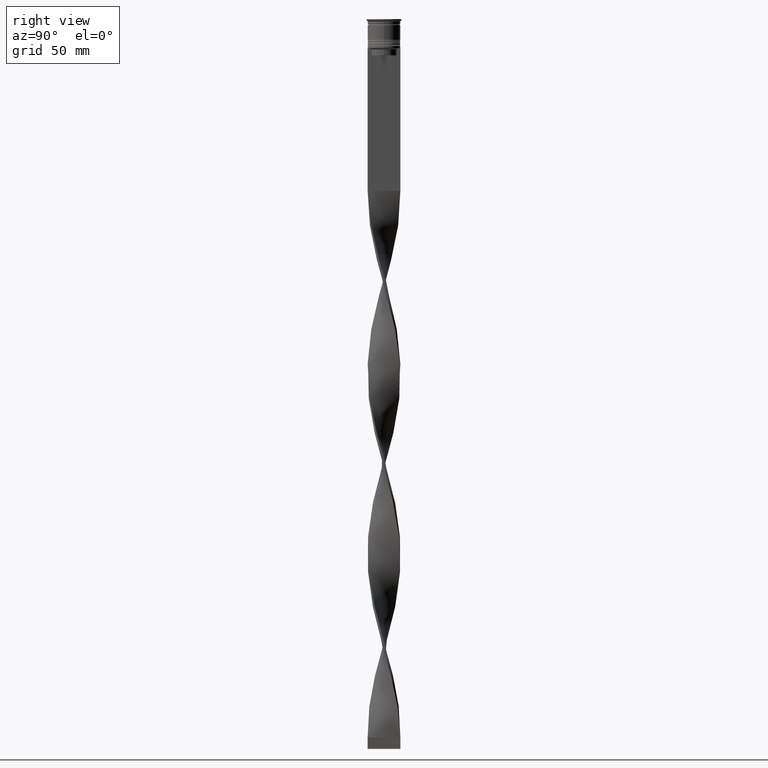
[diagram: clean part render]
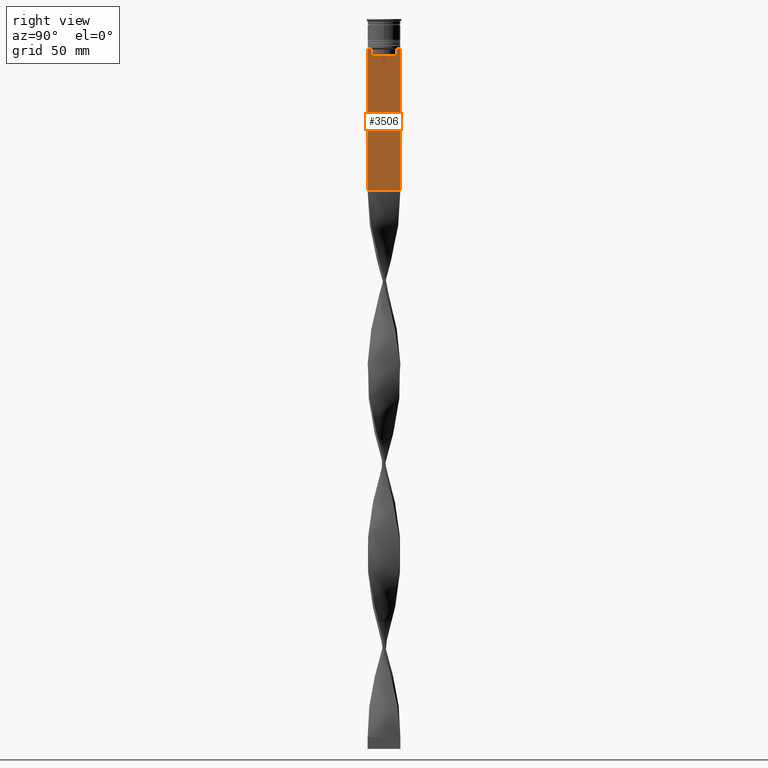
[diagram: same view with one face highlighted and labeled with its STEP entity id]
A machine part, right view. The second image highlights one B-rep face of the part: STEP entity #3506.
In plain terms, the highlighted planar face has unit normal (-1, 0, 0).
Its self-contained STEP definition (entity closure, byte-faithful):
#57 = CARTESIAN_POINT ( 'NONE',  ( 0.5000000000000000000, 7.000000000000002665, -73.50000000000001421 ) ) ;
#152 = VERTEX_POINT ( 'NONE', #2948 ) ;
#239 = CARTESIAN_POINT ( 'NONE',  ( 0.5000000000000000000, -5.711478856069293286, -12.66669469529570335 ) ) ;
#314 = EDGE_CURVE ( 'NONE', #3796, #448, #2772, .T. ) ;
#315 = ORIENTED_EDGE ( 'NONE', *, *, #2149, .T. ) ;
#324 = CARTESIAN_POINT ( 'NONE',  ( 0.5000000000000000000, -5.376802023508029826, 0.000000000000000000 ) ) ;
#345 = LINE ( 'NONE', #652, #1311 ) ;
#364 = CARTESIAN_POINT ( 'NONE',  ( 0.5000000000000000000, 5.878775382679629402, -12.50000000000000000 ) ) ;
#448 = VERTEX_POINT ( 'NONE', #3092 ) ;
#472 = EDGE_CURVE ( 'NONE', #2343, #1014, #2685, .T. ) ;
#574 = CARTESIAN_POINT ( 'NONE',  ( 0.5000000000000000000, 5.878775382679629402, -12.50000000000000000 ) ) ;
#612 = DIRECTION ( 'NONE',  ( -0.000000000000000000, -0.000000000000000000, 1.000000000000000000 ) ) ;
#634 = CARTESIAN_POINT ( 'NONE',  ( 0.5000000000000000000, -6.999999999999997335, 1.535668847618198329 ) ) ;
#652 = CARTESIAN_POINT ( 'NONE',  ( 0.5000000000000000000, -6.999999999999997335, -12.50000000000000000 ) ) ;
#770 = ORIENTED_EDGE ( 'NONE', *, *, #2121, .T. ) ;
#778 = CARTESIAN_POINT ( 'NONE',  ( 0.5000000000000000000, -6.999999999999997335, -12.50000000000000000 ) ) ;
#820 = CARTESIAN_POINT ( 'NONE',  ( 0.5000000000000000000, 5.376802023508029826, 0.000000000000000000 ) ) ;
#833 = DIRECTION ( 'NONE',  ( 0.000000000000000000, -1.000000000000000000, 0.000000000000000000 ) ) ;
#854 = VECTOR ( 'NONE', #925, 1000.000000000000000 ) ;
#925 = DIRECTION ( 'NONE',  ( 0.000000000000000000, 0.000000000000000000, -1.000000000000000000 ) ) ;
#1014 = VERTEX_POINT ( 'NONE', #3172 ) ;
#1033 = LINE ( 'NONE', #2728, #2885 ) ;
#1100 = EDGE_CURVE ( 'NONE', #1014, #1495, #3671, .T. ) ;
#1125 = VECTOR ( 'NONE', #3061, 1000.000000000000000 ) ;
#1127 = CARTESIAN_POINT ( 'NONE',  ( 0.5000000000000000000, 7.000000000000002665, -12.50000000000000000 ) ) ;
#1200 = CARTESIAN_POINT ( 'NONE',  ( 0.5000000000000000000, -5.376802023508029826, -15.50000000000000000 ) ) ;
#1205 = LINE ( 'NONE', #634, #2642 ) ;
#1206 = LINE ( 'NONE', #2770, #854 ) ;
#1210 = CARTESIAN_POINT ( 'NONE',  ( 0.5000000000000000000, 5.544156989057553275, -12.83336397825725861 ) ) ;
#1223 = CARTESIAN_POINT ( 'NONE',  ( 0.5000000000000000000, -5.544156999454441959, -12.83336396790503642 ) ) ;
#1255 = CARTESIAN_POINT ( 'NONE',  ( 0.5000000000000000000, -6.999999999999997335, -12.50000000000000000 ) ) ;
#1311 = VECTOR ( 'NONE', #2204, 1000.000000000000000 ) ;
#1380 = VECTOR ( 'NONE', #833, 1000.000000000000000 ) ;
#1410 = VECTOR ( 'NONE', #2399, 1000.000000000000000 ) ;
#1433 = EDGE_LOOP ( 'NONE', ( #2956, #2276, #3922, #1547, #315, #3295, #2492, #4035, #770, #2512, #3951, #2937 ) ) ;
#1445 = CARTESIAN_POINT ( 'NONE',  ( 0.5000000000000000000, -5.878775382679629402, -12.50000000000000000 ) ) ;
#1488 = EDGE_CURVE ( 'NONE', #1633, #152, #1033, .T. ) ;
#1495 = VERTEX_POINT ( 'NONE', #2790 ) ;
#1505 = B_SPLINE_CURVE_WITH_KNOTS ( 'NONE', 3,
 ( #1838, #1223, #239, #1445 ),
 .UNSPECIFIED., .F., .F.,
 ( 4, 4 ),
 ( 0.02539176325380714666, 0.02610162431828674801 ),
 .UNSPECIFIED. ) ;
#1547 = ORIENTED_EDGE ( 'NONE', *, *, #2879, .T. ) ;
#1633 = VERTEX_POINT ( 'NONE', #1127 ) ;
#1635 = CARTESIAN_POINT ( 'NONE',  ( 0.5000000000000000000, -5.376802023508029826, -13.00000000000000178 ) ) ;
#1719 = DIRECTION ( 'NONE',  ( 0.000000000000000000, -1.000000000000000000, 0.000000000000000000 ) ) ;
#1720 = CARTESIAN_POINT ( 'NONE',  ( 0.5000000000000000000, -6.999999999999997335, -73.50000000000001421 ) ) ;
#1737 = CARTESIAN_POINT ( 'NONE',  ( 0.5000000000000000000, -6.999999999999997335, 1.535668847618198329 ) ) ;
#1751 = CARTESIAN_POINT ( 'NONE',  ( 0.5000000000000000000, -5.878775382679629402, -12.50000000000000000 ) ) ;
#1825 = CARTESIAN_POINT ( 'NONE',  ( 0.5000000000000000000, 5.376802023508029826, -13.00000000000000178 ) ) ;
#1838 = CARTESIAN_POINT ( 'NONE',  ( 0.5000000000000000000, -5.376802023508029826, -13.00000000000000178 ) ) ;
#1851 = CARTESIAN_POINT ( 'NONE',  ( 0.5000000000000000000, 5.711478846560141598, -12.66669470477064685 ) ) ;
#2077 = EDGE_CURVE ( 'NONE', #448, #4068, #345, .T. ) ;
#2110 = CARTESIAN_POINT ( 'NONE',  ( 0.5000000000000000000, 5.400000000000003908, -15.50000000000000000 ) ) ;
#2121 = EDGE_CURVE ( 'NONE', #4068, #3490, #1205, .T. ) ;
#2129 = CARTESIAN_POINT ( 'NONE',  ( 0.5000000000000000000, -6.999999999999997335, -73.50000000000001421 ) ) ;
#2149 = EDGE_CURVE ( 'NONE', #2898, #2346, #4088, .T. ) ;
#2180 = AXIS2_PLACEMENT_3D ( 'NONE', #1737, #3002, #3687 ) ;
#2204 = DIRECTION ( 'NONE',  ( 0.000000000000000000, -1.000000000000000000, 0.000000000000000000 ) ) ;
#2276 = ORIENTED_EDGE ( 'NONE', *, *, #472, .T. ) ;
#2337 = PLANE ( 'NONE',  #2180 ) ;
#2343 = VERTEX_POINT ( 'NONE', #364 ) ;
#2346 = VERTEX_POINT ( 'NONE', #1635 ) ;
#2347 = VECTOR ( 'NONE', #4091, 1000.000000000000000 ) ;
#2380 = VECTOR ( 'NONE', #612, 1000.000000000000000 ) ;
#2399 = DIRECTION ( 'NONE',  ( 0.000000000000000000, 0.000000000000000000, -1.000000000000000000 ) ) ;
#2417 = DIRECTION ( 'NONE',  ( 0.000000000000000000, -1.000000000000000000, 0.000000000000000000 ) ) ;
#2435 = EDGE_CURVE ( 'NONE', #152, #2343, #3334, .T. ) ;
#2472 = LINE ( 'NONE', #2129, #1125 ) ;
#2478 = DIRECTION ( 'NONE',  ( 0.000000000000000000, 0.000000000000000000, -1.000000000000000000 ) ) ;
#2492 = ORIENTED_EDGE ( 'NONE', *, *, #314, .T. ) ;
#2512 = ORIENTED_EDGE ( 'NONE', *, *, #2849, .T. ) ;
#2642 = VECTOR ( 'NONE', #2478, 1000.000000000000000 ) ;
#2685 = B_SPLINE_CURVE_WITH_KNOTS ( 'NONE', 3,
 ( #574, #1851, #1210, #1825 ),
 .UNSPECIFIED., .F., .F.,
 ( 4, 4 ),
 ( 0.01003009312103698807, 0.01073859663834952557 ),
 .UNSPECIFIED. ) ;
#2727 = FACE_OUTER_BOUND ( 'NONE', #1433, .T. ) ;
#2728 = CARTESIAN_POINT ( 'NONE',  ( 0.5000000000000000000, -6.999999999999997335, -12.50000000000000000 ) ) ;
#2770 = CARTESIAN_POINT ( 'NONE',  ( 0.5000000000000000000, 7.000000000000002665, 1.535668847618198329 ) ) ;
#2772 = LINE ( 'NONE', #1255, #2347 ) ;
#2790 = CARTESIAN_POINT ( 'NONE',  ( 0.5000000000000000000, 5.376802023508029826, -15.50000000000000000 ) ) ;
#2848 = VECTOR ( 'NONE', #1719, 1000.000000000000000 ) ;
#2849 = EDGE_CURVE ( 'NONE', #3490, #3211, #2472, .T. ) ;
#2879 = EDGE_CURVE ( 'NONE', #1495, #2898, #3455, .T. ) ;
#2885 = VECTOR ( 'NONE', #2417, 1000.000000000000000 ) ;
#2898 = VERTEX_POINT ( 'NONE', #1200 ) ;
#2937 = ORIENTED_EDGE ( 'NONE', *, *, #1488, .T. ) ;
#2948 = CARTESIAN_POINT ( 'NONE',  ( 0.5000000000000000000, 6.881860213634102053, -12.50000000000000000 ) ) ;
#2956 = ORIENTED_EDGE ( 'NONE', *, *, #2435, .T. ) ;
#2975 = EDGE_CURVE ( 'NONE', #2346, #3796, #1505, .T. ) ;
#3002 = DIRECTION ( 'NONE',  ( -1.000000000000000000, 0.000000000000000000, 0.000000000000000000 ) ) ;
#3061 = DIRECTION ( 'NONE',  ( 0.000000000000000000, 1.000000000000000000, 0.000000000000000000 ) ) ;
#3092 = CARTESIAN_POINT ( 'NONE',  ( 0.5000000000000000000, -6.881860213634102053, -12.50000000000000000 ) ) ;
#3107 = EDGE_CURVE ( 'NONE', #1633, #3211, #1206, .T. ) ;
#3172 = CARTESIAN_POINT ( 'NONE',  ( 0.5000000000000000000, 5.376802023508029826, -13.00000000000000178 ) ) ;
#3211 = VERTEX_POINT ( 'NONE', #57 ) ;
#3295 = ORIENTED_EDGE ( 'NONE', *, *, #2975, .T. ) ;
#3315 = CARTESIAN_POINT ( 'NONE',  ( 0.5000000000000000000, -6.999999999999997335, -12.50000000000000000 ) ) ;
#3334 = LINE ( 'NONE', #778, #2848 ) ;
#3455 = LINE ( 'NONE', #2110, #1380 ) ;
#3490 = VERTEX_POINT ( 'NONE', #1720 ) ;
#3506 = ADVANCED_FACE ( 'NONE', ( #2727 ), #2337, .F. ) ;
#3671 = LINE ( 'NONE', #820, #1410 ) ;
#3687 = DIRECTION ( 'NONE',  ( 0.000000000000000000, 0.000000000000000000, 1.000000000000000000 ) ) ;
#3796 = VERTEX_POINT ( 'NONE', #1751 ) ;
#3922 = ORIENTED_EDGE ( 'NONE', *, *, #1100, .T. ) ;
#3951 = ORIENTED_EDGE ( 'NONE', *, *, #3107, .F. ) ;
#4035 = ORIENTED_EDGE ( 'NONE', *, *, #2077, .T. ) ;
#4068 = VERTEX_POINT ( 'NONE', #3315 ) ;
#4088 = LINE ( 'NONE', #324, #2380 ) ;
#4091 = DIRECTION ( 'NONE',  ( 0.000000000000000000, -1.000000000000000000, 0.000000000000000000 ) ) ;